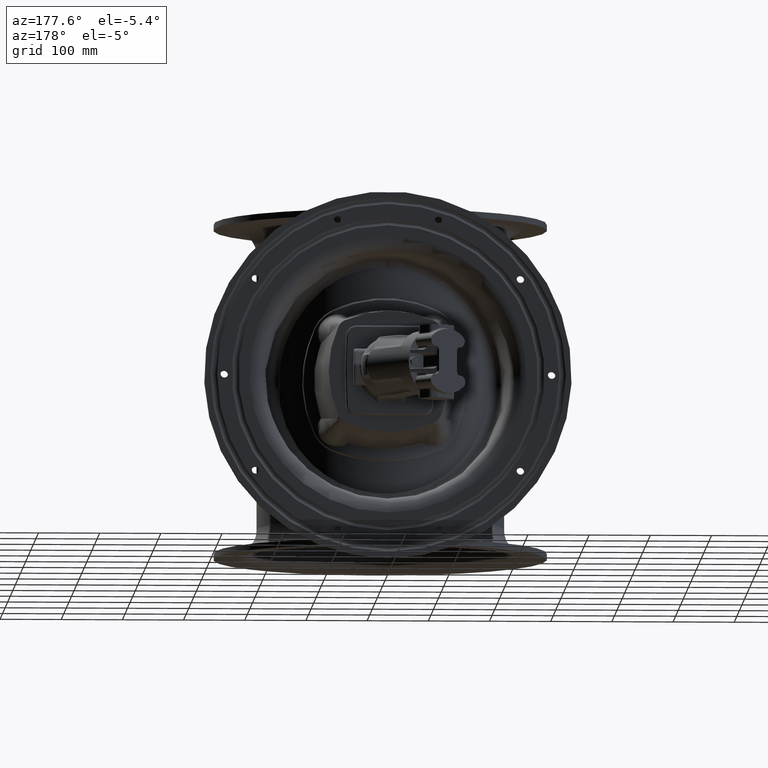
[diagram: clean part render]
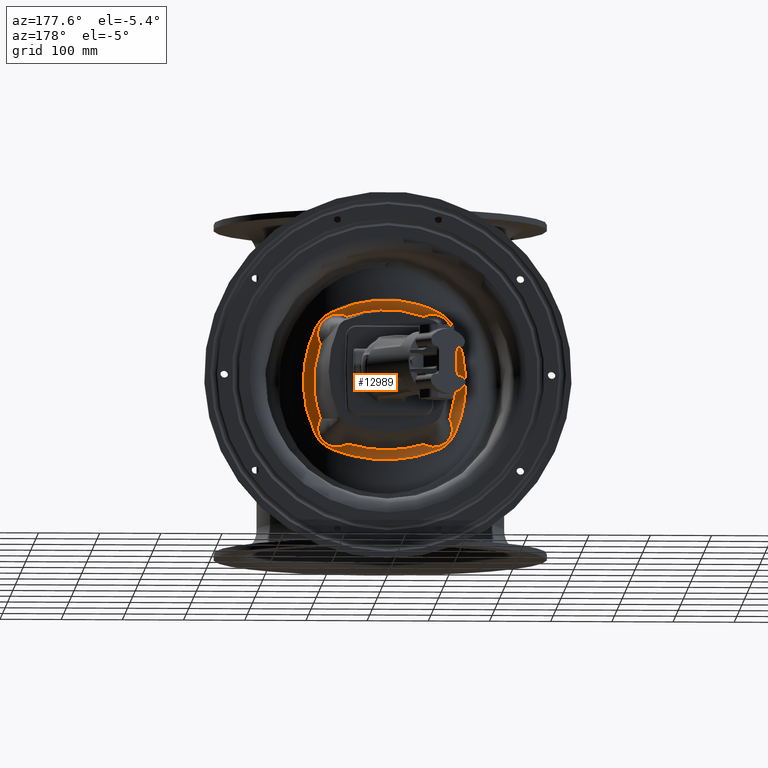
[diagram: same view with one face highlighted and labeled with its STEP entity id]
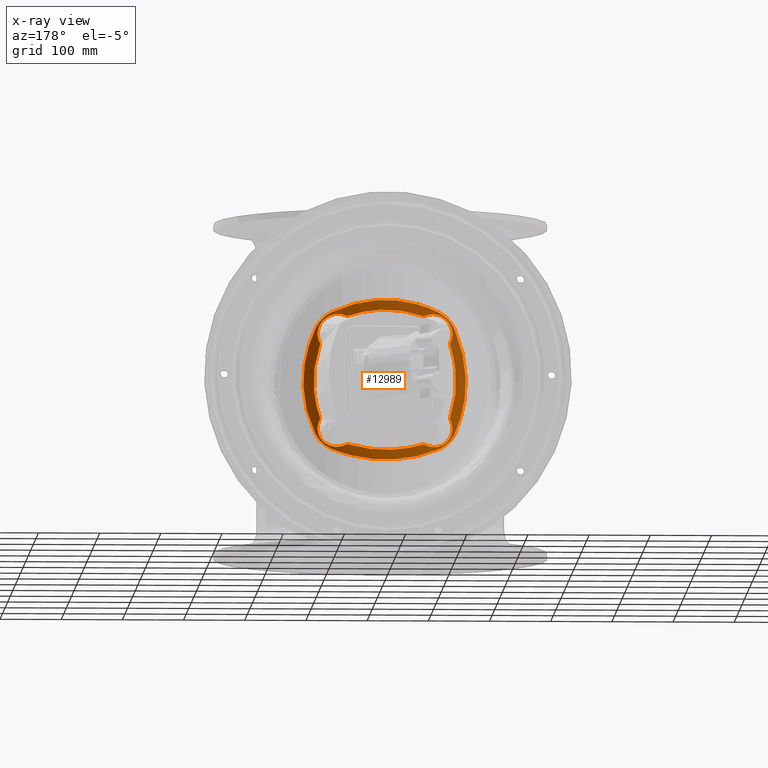
[diagram: x-ray of the same camera — body ghosted, the highlighted face saturated]
A machine part, auxiliary view. The second image highlights one B-rep face of the part: STEP entity #12989.
The next image is the same camera in x-ray: the body ghosted, the highlighted face saturated — about 9% of this face is hidden behind the body in this view.
In plain terms, the highlighted cylindrical surface (partial cylindrical patch) has radius 218.5 mm, axis along (0, -0, 1).
Its self-contained STEP definition (entity closure, byte-faithful):
#722=CYLINDRICAL_SURFACE('',#14090,218.5);
#786=FACE_BOUND('',#3130,.T.);
#1450=B_SPLINE_CURVE_WITH_KNOTS('',3,(#46379,#46380,#46381,#46382),
 .UNSPECIFIED.,.F.,.F.,(4,4),(-0.1566549581717,-8.0093701911654E-16),
 .UNSPECIFIED.);
#1451=B_SPLINE_CURVE_WITH_KNOTS('',3,(#46407,#46408,#46409,#46410,#46411),
 .UNSPECIFIED.,.F.,.F.,(4,1,4),(-0.158430321313645,-0.0905316121792253,
1.23113629245577E-15),.UNSPECIFIED.);
#1457=B_SPLINE_CURVE_WITH_KNOTS('',3,(#46723,#46724,#46725,#46726,#46727,
#46728,#46729,#46730,#46731,#46732),.UNSPECIFIED.,.F.,.F.,(4,1,1,1,1,1,
1,4),(9.72064362525098,10.6409701929338,11.5612967606167,15.2426030313481,
17.0832561667137,18.9239093020794,20.7645624374451,22.6052155728108),
 .UNSPECIFIED.);
#1458=B_SPLINE_CURVE_WITH_KNOTS('',3,(#46756,#46757,#46758,#46759,#46760,
#46761,#46762,#46763,#46764,#46765,#46766),.UNSPECIFIED.,.F.,.F.,(4,1,1,
1,1,1,1,1,4),(-18.3472174276045,-15.7261863665181,-14.415670835975,-13.1051553054318,
-10.4841242443454,-7.86309318325907,-5.24206212217271,-2.62103106108636,
0.),.UNSPECIFIED.);
#1459=B_SPLINE_CURVE_WITH_KNOTS('',3,(#46768,#46769,#46770,#46771,#46772,
#46773,#46774,#46775,#46776,#46777,#46778,#46779,#46780,#46781,#46782,#46783,
#46784,#46785,#46786,#46787,#46788,#46789,#46790,#46791,#46792,#46793,#46794,
#46795,#46796,#46797,#46798,#46799,#46800,#46801,#46802,#46803),
 .UNSPECIFIED.,.F.,.F.,(4,2,2,2,2,2,2,2,2,2,2,2,2,2,2,2,2,4),(0.,0.313338962880444,
0.627831069228086,0.785734745888215,1.103344320034,1.26315467786212,1.50358712690408,
1.58393594588746,1.7449900545711,1.82570130926622,1.98754206155304,2.06854044917885,
2.23074352654346,2.31195524119787,2.55555119305043,2.71780441462933,3.20447675905543,
3.85533213775047),.UNSPECIFIED.);
#1460=B_SPLINE_CURVE_WITH_KNOTS('',3,(#46805,#46806,#46807,#46808,#46809,
#46810,#46811,#46812,#46813,#46814),.UNSPECIFIED.,.F.,.F.,(4,1,1,1,1,1,
1,4),(-18.1158131645623,-15.5278398553391,-12.9398665461159,-10.3518932368927,
-7.76391992766956,-5.17594661844637,-2.58797330922319,0.),.UNSPECIFIED.);
#1461=B_SPLINE_CURVE_WITH_KNOTS('',3,(#46816,#46817,#46818,#46819,#46820,
#46821,#46822,#46823,#46824,#46825,#46826,#46827,#46828,#46829,#46830,#46831,
#46832,#46833,#46834,#46835,#46836,#46837,#46838,#46839,#46840,#46841,#46842,
#46843,#46844,#46845,#46846,#46847,#46848,#46849,#46850,#46851),
 .UNSPECIFIED.,.F.,.F.,(4,2,2,2,2,2,2,2,2,2,2,2,2,2,2,2,2,4),(0.,0.325645222580926,
0.649827350207644,0.811524680246878,1.13444218756611,1.29578255426145,1.53781048990584,
1.61851693522141,1.78001781312159,1.86081456996459,2.02253853885232,2.10332921667944,
2.26467975519684,2.34504926709908,2.58493154959498,2.7439482335516,3.21768948880086,
3.84481511434516),.UNSPECIFIED.);
#1462=B_SPLINE_CURVE_WITH_KNOTS('',3,(#46853,#46854,#46855,#46856,#46857,
#46858,#46859,#46860,#46861,#46862,#46863),.UNSPECIFIED.,.F.,.F.,(4,1,1,
1,1,1,1,1,4),(-18.3472174276045,-15.7261863665181,-14.415670835975,-13.1051553054318,
-10.4841242443454,-7.86309318325907,-5.24206212217271,-2.62103106108636,
-4.56142840676578E-15),.UNSPECIFIED.);
#1463=B_SPLINE_CURVE_WITH_KNOTS('',3,(#46865,#46866,#46867,#46868,#46869,
#46870,#46871,#46872,#46873,#46874,#46875,#46876,#46877,#46878,#46879,#46880,
#46881,#46882,#46883,#46884,#46885,#46886,#46887,#46888,#46889,#46890,#46891,
#46892,#46893,#46894,#46895,#46896,#46897,#46898,#46899,#46900),
 .UNSPECIFIED.,.F.,.F.,(4,2,2,2,2,2,2,2,2,2,2,2,2,2,2,2,2,4),(0.,0.313181047381019,
0.627126247577834,0.784578230117367,1.1008669440528,1.25988358705548,1.49976587192473,
1.58013538535829,1.74148593109472,1.82227661434483,1.98400058441611,2.06479733701839,
2.22629820865227,2.30700465238583,2.54903258604403,2.71037299506959,3.19498842063407,
3.84481511738857),.UNSPECIFIED.);
#1464=B_SPLINE_CURVE_WITH_KNOTS('',3,(#46902,#46903,#46904,#46905,#46906,
#46907,#46908,#46909,#46910,#46911),.UNSPECIFIED.,.F.,.F.,(4,1,1,1,1,1,
1,4),(-18.1158131645623,-15.5278398553391,-12.9398665461159,-10.3518932368927,
-7.76391992766955,-5.17594661844637,-2.58797330922318,0.),.UNSPECIFIED.);
#1465=B_SPLINE_CURVE_WITH_KNOTS('',3,(#46912,#46913,#46914,#46915,#46916,
#46917,#46918,#46919,#46920,#46921,#46922,#46923,#46924,#46925,#46926,#46927,
#46928,#46929,#46930,#46931,#46932,#46933,#46934,#46935,#46936,#46937,#46938,
#46939,#46940,#46941,#46942,#46943,#46944,#46945,#46946,#46947),
 .UNSPECIFIED.,.F.,.F.,(4,2,2,2,2,2,2,2,2,2,2,2,2,2,2,2,2,4),(1.07088497824771E-14,
0.325905275486002,0.650856037812379,0.813121719656133,1.1375277994646,1.29978098169107,
1.54337694099187,1.62458865648814,1.78679173912611,1.86779013072979,2.0296308817571,
2.11034213123071,2.27139623215231,2.35174504900884,2.59217749477283,2.75198789278476,
3.22750169803704,3.85533214195846),.UNSPECIFIED.);
#1466=B_SPLINE_CURVE_WITH_KNOTS('',3,(#46949,#46950,#46951,#46952),
 .UNSPECIFIED.,.F.,.F.,(4,4),(-0.156654958171696,-4.14132169534547E-16),
 .UNSPECIFIED.);
#1467=B_SPLINE_CURVE_WITH_KNOTS('',3,(#46954,#46955,#46956,#46957,#46958,
#46959,#46960,#46961,#46962,#46963,#46964,#46965,#46966,#46967,#46968,#46969,
#46970),.UNSPECIFIED.,.F.,.F.,(4,1,1,1,1,1,1,1,1,1,1,1,1,1,4),(16.4724657558533,
17.07834818434,17.6842306128267,18.4415836484351,18.8959954698001,20.1077603267736,
20.7136427552603,21.9254076122337,22.228348826477,22.4555547371595,22.5312900407204,
23.7430548976938,24.3489373261805,24.5004079333021,24.9548197546672),
 .UNSPECIFIED.);
#1468=B_SPLINE_CURVE_WITH_KNOTS('',3,(#46972,#46973,#46974,#46975,#46976),
 .UNSPECIFIED.,.F.,.F.,(4,1,4),(-0.158430321313518,-0.0678987091343641,
9.54083884702158E-16),.UNSPECIFIED.);
#1469=B_SPLINE_CURVE_WITH_KNOTS('',3,(#46978,#46979,#46980,#46981,#46982,
#46983,#46984,#46985,#46986),.UNSPECIFIED.,.F.,.F.,(4,1,1,1,1,1,4),(8.93978121183471,
10.7116276507684,14.2553205286357,16.0271669675694,17.7990134065031,19.5708598454368,
21.3427062843705),.UNSPECIFIED.);
#1470=B_SPLINE_CURVE_WITH_KNOTS('',3,(#46988,#46989,#46990,#46991,#46992),
 .UNSPECIFIED.,.F.,.F.,(4,1,4),(-0.158430321313516,-0.0678987091343639,
3.92959384243506E-16),.UNSPECIFIED.);
#1471=B_SPLINE_CURVE_WITH_KNOTS('',3,(#46994,#46995,#46996,#46997,#46998,
#46999,#47000,#47001,#47002,#47003,#47004,#47005,#47006,#47007,#47008),
 .UNSPECIFIED.,.F.,.F.,(4,1,1,1,1,1,1,1,1,1,1,1,4),(16.2653519674738,16.8710447299895,
17.4767374925052,18.0824302550208,18.6881230175365,19.2938157800522,21.1108940675992,
21.8680100207438,22.3222795926306,22.6251259738884,23.5336651176619,23.8365114989198,
24.7450506426933),.UNSPECIFIED.);
#1472=B_SPLINE_CURVE_WITH_KNOTS('',3,(#47010,#47011,#47012,#47013),
 .UNSPECIFIED.,.F.,.F.,(4,4),(-0.156654958171698,6.56410601181927E-16),
 .UNSPECIFIED.);
#1473=B_SPLINE_CURVE_WITH_KNOTS('',3,(#47015,#47016,#47017,#47018,#47019,
#47020,#47021,#47022,#47023,#47024),.UNSPECIFIED.,.F.,.F.,(4,1,1,1,1,1,
1,4),(9.72064362525099,10.6409701929338,11.5612967606167,15.2426030313481,
17.0832561667137,18.9239093020794,20.7645624374451,22.6052155728108),
 .UNSPECIFIED.);
#1474=B_SPLINE_CURVE_WITH_KNOTS('',3,(#47026,#47027,#47028,#47029),
 .UNSPECIFIED.,.F.,.F.,(4,4),(-0.156654958171696,-1.96524688343491E-15),
 .UNSPECIFIED.);
#1475=B_SPLINE_CURVE_WITH_KNOTS('',3,(#47031,#47032,#47033,#47034,#47035,
#47036,#47037,#47038,#47039,#47040,#47041,#47042,#47043,#47044,#47045,#47046,
#47047),.UNSPECIFIED.,.F.,.F.,(4,1,1,1,1,1,1,1,1,1,1,1,1,1,4),(16.4744251555581,
17.08030718003,17.686189204502,18.443541735092,18.897953253446,20.10971730239,
20.7155993268619,21.9273633758059,22.2303043880419,22.3060396411009,22.5332454002779,
23.7450094492219,24.3508914736938,24.5023619798118,24.9567734981658),
 .UNSPECIFIED.);
#1476=B_SPLINE_CURVE_WITH_KNOTS('',3,(#47049,#47050,#47051,#47052,#47053),
 .UNSPECIFIED.,.F.,.F.,(4,1,4),(-0.158430321313644,-0.0905316121792253,
-6.15436200314307E-17),.UNSPECIFIED.);
#1477=B_SPLINE_CURVE_WITH_KNOTS('',3,(#47054,#47055,#47056,#47057,#47058,
#47059,#47060,#47061,#47062,#47063),.UNSPECIFIED.,.F.,.F.,(4,1,1,1,1,1,
1,4),(9.07444144829569,10.8462878872294,12.6181343261631,14.3899807650967,
16.1618272040304,17.9336736429641,19.7055200818978,21.4773665208314),
 .UNSPECIFIED.);
#1478=B_SPLINE_CURVE_WITH_KNOTS('',3,(#47064,#47065,#47066,#47067,#47068,
#47069,#47070,#47071,#47072,#47073,#47074,#47075,#47076,#47077,#47078),
 .UNSPECIFIED.,.F.,.F.,(4,1,1,1,1,1,1,1,1,1,1,1,4),(16.2673054806293,16.872998116822,
17.4786907530147,18.0843833892075,18.6900760254002,19.2957686615929,21.112846570171,
21.8699623654119,22.3242318425564,22.7785013197009,23.5356171149418,23.8384634330382,
24.7470023873272),.UNSPECIFIED.);
#2285=FACE_OUTER_BOUND('',#3129,.T.);
#3129=EDGE_LOOP('',(#10697,#10698,#10699,#10700,#10701,#10702,#10703,#10704));
#3130=EDGE_LOOP('',(#10705,#10706,#10707,#10708,#10709,#10710,#10711,#10712,
#10713,#10714,#10715,#10716,#10717,#10718,#10719,#10720));
#5662=VERTEX_POINT('',#46370);
#5664=VERTEX_POINT('',#46377);
#5666=VERTEX_POINT('',#46404);
#5667=VERTEX_POINT('',#46406);
#5670=VERTEX_POINT('',#46721);
#5671=VERTEX_POINT('',#46754);
#5672=VERTEX_POINT('',#46755);
#5673=VERTEX_POINT('',#46767);
#5674=VERTEX_POINT('',#46804);
#5675=VERTEX_POINT('',#46815);
#5676=VERTEX_POINT('',#46852);
#5677=VERTEX_POINT('',#46864);
#5678=VERTEX_POINT('',#46901);
#5679=VERTEX_POINT('',#46948);
#5680=VERTEX_POINT('',#46953);
#5681=VERTEX_POINT('',#46971);
#5682=VERTEX_POINT('',#46977);
#5683=VERTEX_POINT('',#46987);
#5684=VERTEX_POINT('',#46993);
#5685=VERTEX_POINT('',#47009);
#5686=VERTEX_POINT('',#47014);
#5687=VERTEX_POINT('',#47025);
#5688=VERTEX_POINT('',#47030);
#5689=VERTEX_POINT('',#47048);
#7387=EDGE_CURVE('',#5664,#5662,#1450,.T.);
#7389=EDGE_CURVE('',#5666,#5667,#1451,.T.);
#7399=EDGE_CURVE('',#5670,#5664,#1457,.T.);
#7400=EDGE_CURVE('',#5671,#5672,#1458,.T.);
#7401=EDGE_CURVE('',#5673,#5671,#1459,.T.);
#7402=EDGE_CURVE('',#5674,#5673,#1460,.T.);
#7403=EDGE_CURVE('',#5675,#5674,#1461,.T.);
#7404=EDGE_CURVE('',#5676,#5675,#1462,.T.);
#7405=EDGE_CURVE('',#5677,#5676,#1463,.T.);
#7406=EDGE_CURVE('',#5678,#5677,#1464,.T.);
#7407=EDGE_CURVE('',#5672,#5678,#1465,.T.);
#7408=EDGE_CURVE('',#5679,#5670,#1466,.T.);
#7409=EDGE_CURVE('',#5680,#5679,#1467,.T.);
#7410=EDGE_CURVE('',#5681,#5680,#1468,.T.);
#7411=EDGE_CURVE('',#5682,#5681,#1469,.T.);
#7412=EDGE_CURVE('',#5683,#5682,#1470,.T.);
#7413=EDGE_CURVE('',#5684,#5683,#1471,.T.);
#7414=EDGE_CURVE('',#5685,#5684,#1472,.T.);
#7415=EDGE_CURVE('',#5686,#5685,#1473,.T.);
#7416=EDGE_CURVE('',#5687,#5686,#1474,.T.);
#7417=EDGE_CURVE('',#5688,#5687,#1475,.T.);
#7418=EDGE_CURVE('',#5689,#5688,#1476,.T.);
#7419=EDGE_CURVE('',#5667,#5689,#1477,.T.);
#7420=EDGE_CURVE('',#5662,#5666,#1478,.T.);
#10697=ORIENTED_EDGE('',*,*,#7400,.F.);
#10698=ORIENTED_EDGE('',*,*,#7401,.F.);
#10699=ORIENTED_EDGE('',*,*,#7402,.F.);
#10700=ORIENTED_EDGE('',*,*,#7403,.F.);
#10701=ORIENTED_EDGE('',*,*,#7404,.F.);
#10702=ORIENTED_EDGE('',*,*,#7405,.F.);
#10703=ORIENTED_EDGE('',*,*,#7406,.F.);
#10704=ORIENTED_EDGE('',*,*,#7407,.F.);
#10705=ORIENTED_EDGE('',*,*,#7387,.F.);
#10706=ORIENTED_EDGE('',*,*,#7399,.F.);
#10707=ORIENTED_EDGE('',*,*,#7408,.F.);
#10708=ORIENTED_EDGE('',*,*,#7409,.F.);
#10709=ORIENTED_EDGE('',*,*,#7410,.F.);
#10710=ORIENTED_EDGE('',*,*,#7411,.F.);
#10711=ORIENTED_EDGE('',*,*,#7412,.F.);
#10712=ORIENTED_EDGE('',*,*,#7413,.F.);
#10713=ORIENTED_EDGE('',*,*,#7414,.F.);
#10714=ORIENTED_EDGE('',*,*,#7415,.F.);
#10715=ORIENTED_EDGE('',*,*,#7416,.F.);
#10716=ORIENTED_EDGE('',*,*,#7417,.F.);
#10717=ORIENTED_EDGE('',*,*,#7418,.F.);
#10718=ORIENTED_EDGE('',*,*,#7419,.F.);
#10719=ORIENTED_EDGE('',*,*,#7389,.F.);
#10720=ORIENTED_EDGE('',*,*,#7420,.F.);
#12989=ADVANCED_FACE('',(#2285,#786),#722,.T.);
#14090=AXIS2_PLACEMENT_3D('',#46753,#16445,#16446);
#16445=DIRECTION('center_axis',(1.66533453693773E-16,-4.8305084843109E-16,
1.));
#16446=DIRECTION('ref_axis',(-1.,5.02815290480203E-16,1.66533453693774E-16));
#46370=CARTESIAN_POINT('',(67.3953376655915,108.775883055372,105.222557000298));
#46377=CARTESIAN_POINT('',(65.94800554383,109.210006990103,105.086151067995));
#46379=CARTESIAN_POINT('Ctrl Pts',(65.94800554383,109.210006990103,105.086151067995));
#46380=CARTESIAN_POINT('Ctrl Pts',(66.4201040670008,109.070179557167,104.932711246276));
#46381=CARTESIAN_POINT('Ctrl Pts',(66.9557256982009,108.90940220942,104.98643619193));
#46382=CARTESIAN_POINT('Ctrl Pts',(67.3953376655915,108.775883055372,105.222557000298));
#46404=CARTESIAN_POINT('',(110.084779868988,90.6676953241571,62.3334979342253));
#46406=CARTESIAN_POINT('',(109.969382562427,90.7318187988507,60.8088923590658));
#46407=CARTESIAN_POINT('Ctrl Pts',(110.084779868988,90.667695324157,62.3334979342253));
#46408=CARTESIAN_POINT('Ctrl Pts',(109.979296032883,90.7263518375329,62.1430914301706));
#46409=CARTESIAN_POINT('Ctrl Pts',(109.80911786188,90.820723710757,61.6380405077748));
#46410=CARTESIAN_POINT('Ctrl Pts',(109.872683557868,90.7855138560104,61.0890606307606));
#46411=CARTESIAN_POINT('Ctrl Pts',(109.969382562427,90.7318187988507,60.8088923590658));
#46721=CARTESIAN_POINT('',(-58.1548519818797,109.210006990103,105.086151067995));
#46723=CARTESIAN_POINT('Ctrl Pts',(-58.1548519818797,109.210006990103,105.086151067995));
#46724=CARTESIAN_POINT('Ctrl Pts',(-55.3760572517268,110.033038020075,105.989305276412));
#46725=CARTESIAN_POINT('Ctrl Pts',(-49.7672034797093,111.572236254259,107.676575240901));
#46726=CARTESIAN_POINT('Ctrl Pts',(-32.5041634157577,115.590218479754,112.072500323683));
#46727=CARTESIAN_POINT('Ctrl Pts',(-11.2534962590815,118.277877653465,115.000075914142));
#46728=CARTESIAN_POINT('Ctrl Pts',(12.9849416108882,118.267278819013,114.989006308675));
#46729=CARTESIAN_POINT('Ctrl Pts',(31.1920291199521,116.752930317803,113.338575226992));
#46730=CARTESIAN_POINT('Ctrl Pts',(49.026433586474,113.741847945499,110.051777911848));
#46731=CARTESIAN_POINT('Ctrl Pts',(60.3904160835242,110.856069050046,106.892459484829));
#46732=CARTESIAN_POINT('Ctrl Pts',(65.94800554383,109.210006990103,105.086151067995));
#46753=CARTESIAN_POINT('Origin',(3.89657678097504,-100.293859772514,-3.22507180430981E-8));
#46754=CARTESIAN_POINT('',(-84.064652815031,99.7188200454385,-111.907491916442));
#46755=CARTESIAN_POINT('',(91.8578063769813,99.7188200454384,-111.907491916442));
#46756=CARTESIAN_POINT('Ctrl Pts',(-84.064652815031,99.7188200454385,-111.907491916442));
#46757=CARTESIAN_POINT('Ctrl Pts',(-76.5975589645037,103.002685634355,-115.314039439292));
#46758=CARTESIAN_POINT('Ctrl Pts',(-64.8403015673793,107.417012753066,-119.88006149377));
#46759=CARTESIAN_POINT('Ctrl Pts',(-48.3960615511409,111.987338956805,-124.596229831582));
#46760=CARTESIAN_POINT('Ctrl Pts',(-31.410524983108,115.643445792245,-128.363777529929));
#46761=CARTESIAN_POINT('Ctrl Pts',(-9.51313056322293,118.337525427584,-131.135136833688));
#46762=CARTESIAN_POINT('Ctrl Pts',(17.1919183102008,118.342271401838,-131.140083932874));
#46763=CARTESIAN_POINT('Ctrl Pts',(43.4635806525125,115.127839722858,-127.833316815002));
#46764=CARTESIAN_POINT('Ctrl Pts',(68.6676165067136,108.908560264867,-121.422843135002));
#46765=CARTESIAN_POINT('Ctrl Pts',(84.390712526454,103.002685634355,-115.314039439292));
#46766=CARTESIAN_POINT('Ctrl Pts',(91.8578063769813,99.7188200454384,-111.907491916442));
#46767=CARTESIAN_POINT('',(-109.568792020398,86.4355168203736,-86.7535239587462));
#46768=CARTESIAN_POINT('Ctrl Pts',(-109.568792020398,86.4355168203736,-86.7535239587462));
#46769=CARTESIAN_POINT('Ctrl Pts',(-109.137996274051,86.6972881556031,-87.6720685214567));
#46770=CARTESIAN_POINT('Ctrl Pts',(-108.680612100326,86.9731755506148,-88.5763180320649));
#46771=CARTESIAN_POINT('Ctrl Pts',(-107.71375291928,87.5510303617752,-90.3556044414028));
#46772=CARTESIAN_POINT('Ctrl Pts',(-107.204095628277,87.8530853726808,-91.2305149568838));
#46773=CARTESIAN_POINT('Ctrl Pts',(-106.403018563165,88.3230686554845,-92.5173255034503));
#46774=CARTESIAN_POINT('Ctrl Pts',(-106.129291489666,88.4828939758854,-92.9428639365705));
#46775=CARTESIAN_POINT('Ctrl Pts',(-105.287754858973,88.9717061917662,-94.2098364022499));
#46776=CARTESIAN_POINT('Ctrl Pts',(-104.7024873456,89.308302723693,-95.0366125749681));
#46777=CARTESIAN_POINT('Ctrl Pts',(-103.791037342629,89.8264991746315,-96.2475858518049));
#46778=CARTESIAN_POINT('Ctrl Pts',(-103.480650385542,90.0019956618075,-96.6475542813853));
#46779=CARTESIAN_POINT('Ctrl Pts',(-102.6888182849,90.4470676815599,-97.6375837913471));
#46780=CARTESIAN_POINT('Ctrl Pts',(-102.200477733983,90.7192072997132,-98.2211944453832));
#46781=CARTESIAN_POINT('Ctrl Pts',(-101.532852674005,91.0877535725839,-98.9843160089608));
#46782=CARTESIAN_POINT('Ctrl Pts',(-101.364283240358,91.1805221526788,-99.1741590419489));
#46783=CARTESIAN_POINT('Ctrl Pts',(-100.853861616003,91.4605314831939,-99.7405576006975));
#46784=CARTESIAN_POINT('Ctrl Pts',(-100.508028994798,91.6490682168159,-100.113120916613));
#46785=CARTESIAN_POINT('Ctrl Pts',(-99.9812545459909,91.9343540749029,-100.664175300201));
#46786=CARTESIAN_POINT('Ctrl Pts',(-99.8041188301025,92.0299733978691,-100.846765045318));
#46787=CARTESIAN_POINT('Ctrl Pts',(-99.2680330049826,92.3183888776856,-101.391279119529));
#46788=CARTESIAN_POINT('Ctrl Pts',(-98.9053135890888,92.5122462332126,-101.748993588134));
#46789=CARTESIAN_POINT('Ctrl Pts',(-98.3538717330636,92.8049211550311,-102.277094201666));
#46790=CARTESIAN_POINT('Ctrl Pts',(-98.1687372061958,92.9028433273633,-102.451794521347));
#46791=CARTESIAN_POINT('Ctrl Pts',(-97.6093486113128,93.1976776310839,-102.971952889796));
#46792=CARTESIAN_POINT('Ctrl Pts',(-97.2315727327403,93.3954094377314,-103.313013092689));
#46793=CARTESIAN_POINT('Ctrl Pts',(-96.6579717959114,93.6934577328455,-103.815828437269));
#46794=CARTESIAN_POINT('Ctrl Pts',(-96.4654815786499,93.7931175180354,-103.982081216793));
#46795=CARTESIAN_POINT('Ctrl Pts',(-95.6912827380093,94.1924770879355,-104.640926462458));
#46796=CARTESIAN_POINT('Ctrl Pts',(-95.0995321968368,94.4944242575558,-105.122522740981));
#46797=CARTESIAN_POINT('Ctrl Pts',(-94.0960554967334,95.000523547726,-105.90322616972));
#46798=CARTESIAN_POINT('Ctrl Pts',(-93.6902080271827,95.2036573994416,-106.209560745685));
#46799=CARTESIAN_POINT('Ctrl Pts',(-92.0491503823109,96.0185383766287,-107.41103710209));
#46800=CARTESIAN_POINT('Ctrl Pts',(-90.7781124455521,96.6351570382729,-108.258706670955));
#46801=CARTESIAN_POINT('Ctrl Pts',(-87.7265941425096,98.0774575264386,-110.106574104464));
#46802=CARTESIAN_POINT('Ctrl Pts',(-85.9188842539454,98.9033693576574,-111.061576806566));
#46803=CARTESIAN_POINT('Ctrl Pts',(-84.064652815031,99.7188200454385,-111.907491916442));
#46804=CARTESIAN_POINT('',(-109.568792020398,86.4355168203735,86.7535238942451));
#46805=CARTESIAN_POINT('Ctrl Pts',(-109.568792020398,86.4355168203735,86.753523894245));
#46806=CARTESIAN_POINT('Ctrl Pts',(-113.126880944363,84.2734581269202,79.1669512261895));
#46807=CARTESIAN_POINT('Ctrl Pts',(-119.342533264153,80.2184472928578,63.5053115483124));
#46808=CARTESIAN_POINT('Ctrl Pts',(-125.777475394888,75.5991615155771,38.6711881142813));
#46809=CARTESIAN_POINT('Ctrl Pts',(-129.060203029711,73.099357823602,13.0253072801163));
#46810=CARTESIAN_POINT('Ctrl Pts',(-129.066289813177,73.0940661282161,-12.9597723021451));
#46811=CARTESIAN_POINT('Ctrl Pts',(-125.7866475809,75.59235820107,-38.6107070789086));
#46812=CARTESIAN_POINT('Ctrl Pts',(-119.373841312242,80.1971505111735,-63.4161680207077));
#46813=CARTESIAN_POINT('Ctrl Pts',(-113.126880944363,84.2734581269203,-79.1669512906906));
#46814=CARTESIAN_POINT('Ctrl Pts',(-109.568792020398,86.4355168203736,-86.7535239587463));
#46815=CARTESIAN_POINT('',(-84.0646528150309,99.7188200454384,111.907491851941));
#46816=CARTESIAN_POINT('Ctrl Pts',(-84.0646528150309,99.7188200454384,111.907491851941));
#46817=CARTESIAN_POINT('Ctrl Pts',(-84.992388268108,99.3108221561709,111.484251569603));
#46818=CARTESIAN_POINT('Ctrl Pts',(-85.9092387171701,98.899897546624,111.033400522073));
#46819=CARTESIAN_POINT('Ctrl Pts',(-87.7130868321409,98.0767481717837,110.079926012898));
#46820=CARTESIAN_POINT('Ctrl Pts',(-88.6001960754412,97.6645409644782,109.577546188243));
#46821=CARTESIAN_POINT('Ctrl Pts',(-89.9077038206896,97.0465530960776,108.785783097527));
#46822=CARTESIAN_POINT('Ctrl Pts',(-90.3391693924857,96.8408637083784,108.515852368791));
#46823=CARTESIAN_POINT('Ctrl Pts',(-91.6206093357719,96.2248798151496,107.687917346075));
#46824=CARTESIAN_POINT('Ctrl Pts',(-92.4589257086677,95.8150579259799,107.111019608299));
#46825=CARTESIAN_POINT('Ctrl Pts',(-93.6900730371519,95.2037245596023,106.209659343026));
#46826=CARTESIAN_POINT('Ctrl Pts',(-94.0959256823524,95.0005884406345,105.903325548858));
#46827=CARTESIAN_POINT('Ctrl Pts',(-95.0992441545825,94.4945692930563,105.122745943434));
#46828=CARTESIAN_POINT('Ctrl Pts',(-95.6910287252787,94.1926078975581,104.641141831836));
#46829=CARTESIAN_POINT('Ctrl Pts',(-96.4656073628611,93.793052432758,103.981973378104));
#46830=CARTESIAN_POINT('Ctrl Pts',(-96.6580947219028,93.6933936647636,103.815719890319));
#46831=CARTESIAN_POINT('Ctrl Pts',(-97.232054906446,93.395158698492,103.312589605644));
#46832=CARTESIAN_POINT('Ctrl Pts',(-97.6098124966612,93.1974329636427,102.971520779348));
#46833=CARTESIAN_POINT('Ctrl Pts',(-98.1688519171141,92.9027827209696,102.451687124001));
#46834=CARTESIAN_POINT('Ctrl Pts',(-98.3539841573329,92.8048613495633,102.276985862715));
#46835=CARTESIAN_POINT('Ctrl Pts',(-98.9057463624104,92.5120163952789,101.748578403507));
#46836=CARTESIAN_POINT('Ctrl Pts',(-99.2684474460247,92.3181658089319,101.390857730184));
#46837=CARTESIAN_POINT('Ctrl Pts',(-99.804222133503,92.0299177210277,100.846659511439));
#46838=CARTESIAN_POINT('Ctrl Pts',(-99.9813568094961,91.9342986763858,100.664068491094));
#46839=CARTESIAN_POINT('Ctrl Pts',(-100.508136686806,91.6490095959679,100.113005771312));
#46840=CARTESIAN_POINT('Ctrl Pts',(-100.85352034926,91.4607183671918,99.7409333914325));
#46841=CARTESIAN_POINT('Ctrl Pts',(-101.364164306517,91.1805874755929,99.1742917816742));
#46842=CARTESIAN_POINT('Ctrl Pts',(-101.53273091151,91.087820713209,98.9844545894364));
#46843=CARTESIAN_POINT('Ctrl Pts',(-102.19952732113,90.7197321012434,98.2222818291248));
#46844=CARTESIAN_POINT('Ctrl Pts',(-102.687963407981,90.4475481279297,97.6386509392369));
#46845=CARTESIAN_POINT('Ctrl Pts',(-103.480348345303,90.0021657265973,96.6479352261507));
#46846=CARTESIAN_POINT('Ctrl Pts',(-103.790980903974,89.8265313516671,96.2476605680771));
#46847=CARTESIAN_POINT('Ctrl Pts',(-105.005207076404,89.1361949854273,94.6344238131198));
#46848=CARTESIAN_POINT('Ctrl Pts',(-105.865445066351,88.6384595066227,93.380858818506));
#46849=CARTESIAN_POINT('Ctrl Pts',(-107.736898850416,87.5404934332773,90.3746778297474));
#46850=CARTESIAN_POINT('Ctrl Pts',(-108.706585005268,86.9594335106124,88.5919254392817));
#46851=CARTESIAN_POINT('Ctrl Pts',(-109.568792020398,86.4355168203736,86.7535238942451));
#46852=CARTESIAN_POINT('',(91.8578063769812,99.7188200454383,111.907491851941));
#46853=CARTESIAN_POINT('Ctrl Pts',(91.8578063769812,99.7188200454383,111.907491851941));
#46854=CARTESIAN_POINT('Ctrl Pts',(84.3907125264539,103.002685634355,115.314039374791));
#46855=CARTESIAN_POINT('Ctrl Pts',(72.6337445305218,107.417040431252,119.880086222797));
#46856=CARTESIAN_POINT('Ctrl Pts',(56.1888176207668,111.987311853276,124.596204782251));
#46857=CARTESIAN_POINT('Ctrl Pts',(39.2045195149843,115.643584575421,128.363900642668));
#46858=CARTESIAN_POINT('Ctrl Pts',(17.3060314505517,118.336478935511,131.134107534964));
#46859=CARTESIAN_POINT('Ctrl Pts',(-9.40051240320616,118.343025874316,131.140815690077));
#46860=CARTESIAN_POINT('Ctrl Pts',(-35.6724633035432,115.12652927054,127.832010308781));
#46861=CARTESIAN_POINT('Ctrl Pts',(-60.87085752459,108.909903384265,121.424197225324));
#46862=CARTESIAN_POINT('Ctrl Pts',(-76.5975589645036,103.002685634355,115.314039374791));
#46863=CARTESIAN_POINT('Ctrl Pts',(-84.0646528150309,99.7188200454384,111.907491851941));
#46864=CARTESIAN_POINT('',(117.361945582348,86.4355168203734,86.7535238942449));
#46865=CARTESIAN_POINT('Ctrl Pts',(117.361945582348,86.4355168203735,86.7535238942452));
#46866=CARTESIAN_POINT('Ctrl Pts',(116.93136694697,86.6971562289798,87.6716055320055));
#46867=CARTESIAN_POINT('Ctrl Pts',(116.474036733046,86.9730135014903,88.5758184568911));
#46868=CARTESIAN_POINT('Ctrl Pts',(115.507231833637,87.5508358277073,90.355004930266));
#46869=CARTESIAN_POINT('Ctrl Pts',(114.997634346213,87.8528592783415,91.2298950417141));
#46870=CARTESIAN_POINT('Ctrl Pts',(114.196277293305,88.3230068808311,92.5171556541218));
#46871=CARTESIAN_POINT('Ctrl Pts',(113.922558485064,88.4828280228669,92.9426923301341));
#46872=CARTESIAN_POINT('Ctrl Pts',(113.081405308816,88.9714174015375,94.2090869307858));
#46873=CARTESIAN_POINT('Ctrl Pts',(112.496213024241,89.3079771529637,95.0358498370676));
#46874=CARTESIAN_POINT('Ctrl Pts',(111.584135358454,89.8265308260403,96.2476603497663));
#46875=CARTESIAN_POINT('Ctrl Pts',(111.273501383782,90.0021658300811,96.6479341342774));
#46876=CARTESIAN_POINT('Ctrl Pts',(110.481116941702,90.4475480519683,97.6386502763854));
#46877=CARTESIAN_POINT('Ctrl Pts',(109.992680688524,90.7197321521836,98.2222814068501));
#46878=CARTESIAN_POINT('Ctrl Pts',(109.325884315649,91.0878207701551,98.9844543230632));
#46879=CARTESIAN_POINT('Ctrl Pts',(109.157317701267,91.1805875387862,99.1742915244171));
#46880=CARTESIAN_POINT('Ctrl Pts',(108.646673742421,91.4607184436596,99.7409332062841));
#46881=CARTESIAN_POINT('Ctrl Pts',(108.30129009132,91.6490096875952,100.113005685575));
#46882=CARTESIAN_POINT('Ctrl Pts',(107.77451020497,91.9342987840409,100.664068466023));
#46883=CARTESIAN_POINT('Ctrl Pts',(107.597375520993,92.0299178355535,100.846659504904));
#46884=CARTESIAN_POINT('Ctrl Pts',(107.061600835671,92.3181659337533,101.390857766179));
#46885=CARTESIAN_POINT('Ctrl Pts',(106.698899780505,92.5120165281746,101.748578498088));
#46886=CARTESIAN_POINT('Ctrl Pts',(106.147137599788,92.8048614823918,102.276985973938));
#46887=CARTESIAN_POINT('Ctrl Pts',(105.962005373718,92.9027828494379,102.451687230526));
#46888=CARTESIAN_POINT('Ctrl Pts',(105.402965998061,93.1974330835168,102.971520885311));
#46889=CARTESIAN_POINT('Ctrl Pts',(105.025208463652,93.3951588196116,103.312589745225));
#46890=CARTESIAN_POINT('Ctrl Pts',(104.451248325069,93.6933937822955,103.81572003676));
#46891=CARTESIAN_POINT('Ctrl Pts',(104.25876097163,93.7930525471012,103.981973518759));
#46892=CARTESIAN_POINT('Ctrl Pts',(103.48418241237,94.1926080285938,104.641142031569));
#46893=CARTESIAN_POINT('Ctrl Pts',(102.892397921838,94.4945693825281,105.122746114248));
#46894=CARTESIAN_POINT('Ctrl Pts',(101.889079624136,95.0005887678059,105.90332617125));
#46895=CARTESIAN_POINT('Ctrl Pts',(101.483226332547,95.2037244350231,106.209658954334));
#46896=CARTESIAN_POINT('Ctrl Pts',(99.8409916083057,96.0191902618314,107.411997577378));
#46897=CARTESIAN_POINT('Ctrl Pts',(98.5698321347825,96.6358347197834,108.259574785385));
#46898=CARTESIAN_POINT('Ctrl Pts',(95.5170317311208,98.0787416358504,110.108218157217));
#46899=CARTESIAN_POINT('Ctrl Pts',(93.7091071888202,98.9046581837521,111.062913717414));
#46900=CARTESIAN_POINT('Ctrl Pts',(91.8578063769812,99.7188200454383,111.907491851941));
#46901=CARTESIAN_POINT('',(117.361945582348,86.4355168203735,-86.7535239587463));
#46902=CARTESIAN_POINT('Ctrl Pts',(117.361945582348,86.4355168203735,-86.7535239587462));
#46903=CARTESIAN_POINT('Ctrl Pts',(120.920034506313,84.2734581269202,-79.1669512906906));
#46904=CARTESIAN_POINT('Ctrl Pts',(127.166815812522,80.1975123794852,-63.4174170071451));
#46905=CARTESIAN_POINT('Ctrl Pts',(133.580318262123,75.5914383634248,-38.607512613297));
#46906=CARTESIAN_POINT('Ctrl Pts',(136.859061350386,73.0952386121086,-12.9614728235758));
#46907=CARTESIAN_POINT('Ctrl Pts',(136.85324783254,73.0985068110243,13.0302521994066));
#46908=CARTESIAN_POINT('Ctrl Pts',(133.570841308273,75.5995142753105,38.6671692728364));
#46909=CARTESIAN_POINT('Ctrl Pts',(127.135657264908,80.2182473664771,63.5067246889503));
#46910=CARTESIAN_POINT('Ctrl Pts',(120.920034506313,84.2734581269201,79.1669512261894));
#46911=CARTESIAN_POINT('Ctrl Pts',(117.361945582348,86.4355168203734,86.7535238942449));
#46912=CARTESIAN_POINT('Ctrl Pts',(91.8578063769812,99.7188200454384,-111.907491916442));
#46913=CARTESIAN_POINT('Ctrl Pts',(92.786282698597,99.3104963382892,-111.483913643993));
#46914=CARTESIAN_POINT('Ctrl Pts',(93.7031092988714,98.8995703569714,-111.033021720818));
#46915=CARTESIAN_POINT('Ctrl Pts',(95.506938650292,98.0764295363326,-110.079557140963));
#46916=CARTESIAN_POINT('Ctrl Pts',(96.3940173521778,97.6642253646418,-109.577142153866));
#46917=CARTESIAN_POINT('Ctrl Pts',(97.7010190019187,97.0464767604116,-108.785685636138));
#46918=CARTESIAN_POINT('Ctrl Pts',(98.1324802523129,96.8407881469854,-108.515751143853));
#46919=CARTESIAN_POINT('Ctrl Pts',(99.4143760635805,96.22458507441,-107.687521581824));
#46920=CARTESIAN_POINT('Ctrl Pts',(100.252654277606,95.8147724187755,-107.110599115162));
#46921=CARTESIAN_POINT('Ctrl Pts',(101.48336251156,95.2036571635162,-106.209560505664));
#46922=CARTESIAN_POINT('Ctrl Pts',(101.88920910216,95.0005230226679,-105.903225144205));
#46923=CARTESIAN_POINT('Ctrl Pts',(102.892685977467,94.4944239549106,-105.122522159142));
#46924=CARTESIAN_POINT('Ctrl Pts',(103.484436504167,94.1924767952814,-104.640925931982));
#46925=CARTESIAN_POINT('Ctrl Pts',(104.258635432982,93.7931172350964,-103.982080733861));
#46926=CARTESIAN_POINT('Ctrl Pts',(104.451125654921,93.6934574472557,-103.81582794897));
#46927=CARTESIAN_POINT('Ctrl Pts',(105.024726637318,93.3954091480058,-103.313012608189));
#46928=CARTESIAN_POINT('Ctrl Pts',(105.402502576894,93.1976773387444,-102.97195242644));
#46929=CARTESIAN_POINT('Ctrl Pts',(105.961891222742,92.9028430226118,-102.451794046778));
#46930=CARTESIAN_POINT('Ctrl Pts',(106.147025766023,92.8049208445982,-102.277093718894));
#46931=CARTESIAN_POINT('Ctrl Pts',(106.698467660086,92.5122459149715,-101.748993103297));
#46932=CARTESIAN_POINT('Ctrl Pts',(107.06118713513,92.3183885505003,-101.391278650243));
#46933=CARTESIAN_POINT('Ctrl Pts',(107.597272982445,92.0299730700586,-100.846764590127));
#46934=CARTESIAN_POINT('Ctrl Pts',(107.774408696106,91.9343537508353,-100.664174855701));
#46935=CARTESIAN_POINT('Ctrl Pts',(108.301183160742,91.6490678954488,-100.113120498778));
#46936=CARTESIAN_POINT('Ctrl Pts',(108.647015856646,91.4605311429733,-99.7405571981954));
#46937=CARTESIAN_POINT('Ctrl Pts',(109.157437519482,91.1805218044191,-99.1741586580423));
#46938=CARTESIAN_POINT('Ctrl Pts',(109.326006951325,91.0877532262352,-98.9843156231485));
#46939=CARTESIAN_POINT('Ctrl Pts',(109.993632154496,90.7192069041847,-98.221194086723));
#46940=CARTESIAN_POINT('Ctrl Pts',(110.481972851367,90.4470672367649,-97.637583238029));
#46941=CARTESIAN_POINT('Ctrl Pts',(111.273805695206,90.0019949287421,-96.6475539489207));
#46942=CARTESIAN_POINT('Ctrl Pts',(111.584191386667,89.826498914142,-96.2475841204426));
#46943=CARTESIAN_POINT('Ctrl Pts',(112.797107552088,89.1369082661958,-94.6360941413674));
#46944=CARTESIAN_POINT('Ctrl Pts',(113.657578903162,88.639057922242,-93.3824961796699));
#46945=CARTESIAN_POINT('Ctrl Pts',(115.528623224209,87.5413328871672,-90.3769821402864));
#46946=CARTESIAN_POINT('Ctrl Pts',(116.498769543908,86.9600223338026,-88.5939916594955));
#46947=CARTESIAN_POINT('Ctrl Pts',(117.361945582348,86.4355168203735,-86.7535239587463));
#46948=CARTESIAN_POINT('',(-59.6021841036411,108.775883055372,105.222557000298));
#46949=CARTESIAN_POINT('Ctrl Pts',(-59.6021841036412,108.775883055372,105.222557000298));
#46950=CARTESIAN_POINT('Ctrl Pts',(-59.1625721362506,108.90940220942,104.98643619193));
#46951=CARTESIAN_POINT('Ctrl Pts',(-58.6269505050505,109.070179557167,104.932711246276));
#46952=CARTESIAN_POINT('Ctrl Pts',(-58.1548519818797,109.210006990103,105.086151067995));
#46953=CARTESIAN_POINT('',(-102.291626307038,90.6676953241572,62.3334979342253));
#46954=CARTESIAN_POINT('Ctrl Pts',(-102.291626307038,90.6676953241572,62.3334979342253));
#46955=CARTESIAN_POINT('Ctrl Pts',(-103.238038484937,90.1414228579488,64.0418453061342));
#46956=CARTESIAN_POINT('Ctrl Pts',(-104.829038347287,89.2385799150238,67.6652682957233));
#46957=CARTESIAN_POINT('Ctrl Pts',(-106.293403630434,88.3872274034542,74.105813778481));
#46958=CARTESIAN_POINT('Ctrl Pts',(-106.29446845826,88.3866393133252,80.2601379089748));
#46959=CARTESIAN_POINT('Ctrl Pts',(-104.746571067742,89.2867501488512,88.2156460261817));
#46960=CARTESIAN_POINT('Ctrl Pts',(-101.387306054825,91.1996669028357,94.9430781698892));
#46961=CARTESIAN_POINT('Ctrl Pts',(-95.0546419320694,94.5592632362137,101.987597217674));
#46962=CARTESIAN_POINT('Ctrl Pts',(-89.4655626009202,97.3039947148383,105.582459672365));
#46963=CARTESIAN_POINT('Ctrl Pts',(-84.501379413698,99.5313781817766,107.41373412618));
#46964=CARTESIAN_POINT('Ctrl Pts',(-82.7213829667831,100.30622566058,107.923991872091));
#46965=CARTESIAN_POINT('Ctrl Pts',(-78.2034572234615,102.236245231882,109.001189183208));
#46966=CARTESIAN_POINT('Ctrl Pts',(-72.332283637763,104.54684003718,109.299725990085));
#46967=CARTESIAN_POINT('Ctrl Pts',(-66.2601610201171,106.648276865561,107.953947808543));
#46968=CARTESIAN_POINT('Ctrl Pts',(-62.636883900464,107.837045361592,106.700786745404));
#46969=CARTESIAN_POINT('Ctrl Pts',(-60.8856318700136,108.386073694522,105.911912037406));
#46970=CARTESIAN_POINT('Ctrl Pts',(-59.6021841036411,108.775883055372,105.222557000298));
#46971=CARTESIAN_POINT('',(-102.176229000477,90.7318187988508,60.8088923590658));
#46972=CARTESIAN_POINT('Ctrl Pts',(-102.176229000477,90.7318187988508,60.8088923590658));
#46973=CARTESIAN_POINT('Ctrl Pts',(-102.079529995918,90.7855138560102,61.0890606307594));
#46974=CARTESIAN_POINT('Ctrl Pts',(-102.015964190187,90.820723770933,61.6380405157701));
#46975=CARTESIAN_POINT('Ctrl Pts',(-102.186142470933,90.7263518375331,62.1430914301704));
#46976=CARTESIAN_POINT('Ctrl Pts',(-102.291626307038,90.6676953241572,62.3334979342253));
#46977=CARTESIAN_POINT('',(-102.176229000477,90.7318187988508,-60.8088924235671));
#46978=CARTESIAN_POINT('Ctrl Pts',(-102.176229000477,90.7318187988509,-60.8088924235671));
#46979=CARTESIAN_POINT('Ctrl Pts',(-104.069833952369,89.6803371771601,-55.3225068184275));
#46980=CARTESIAN_POINT('Ctrl Pts',(-109.041272966323,86.8036668286988,-38.4835660891587));
#46981=CARTESIAN_POINT('Ctrl Pts',(-112.481377907197,84.630436761805,-14.7776116116275));
#46982=CARTESIAN_POINT('Ctrl Pts',(-112.471012771999,84.6423464787092,8.86532152852752));
#46983=CARTESIAN_POINT('Ctrl Pts',(-110.770999109039,85.7063431774745,26.6334005844358));
#46984=CARTESIAN_POINT('Ctrl Pts',(-107.375917656075,87.7716160144402,44.0940379106513));
#46985=CARTESIAN_POINT('Ctrl Pts',(-104.069833952369,89.68033717716,55.3225067539263));
#46986=CARTESIAN_POINT('Ctrl Pts',(-102.176229000477,90.7318187988508,60.8088923590658));
#46987=CARTESIAN_POINT('',(-102.291626307038,90.6676953241573,-62.3334979987266));
#46988=CARTESIAN_POINT('Ctrl Pts',(-102.291626307038,90.6676953241573,-62.3334979987266));
#46989=CARTESIAN_POINT('Ctrl Pts',(-102.150981192231,90.7459040086583,-62.0796226599873));
#46990=CARTESIAN_POINT('Ctrl Pts',(-102.010531980155,90.8237185891942,-61.5539754239745));
#46991=CARTESIAN_POINT('Ctrl Pts',(-102.103704747058,90.7720900917206,-61.0190186273381));
#46992=CARTESIAN_POINT('Ctrl Pts',(-102.176229000477,90.7318187988509,-60.808892423567));
#46993=CARTESIAN_POINT('',(-59.6021841036411,108.775883055372,-105.222557064799));
#46994=CARTESIAN_POINT('Ctrl Pts',(-59.6021841036411,108.775883055372,-105.222557064799));
#46995=CARTESIAN_POINT('Ctrl Pts',(-61.3149667981353,108.255675887688,-106.142512990437));
#46996=CARTESIAN_POINT('Ctrl Pts',(-64.8987356919362,107.120030522109,-107.652168900857));
#46997=CARTESIAN_POINT('Ctrl Pts',(-70.4442301305417,105.199813270403,-108.884117187045));
#46998=CARTESIAN_POINT('Ctrl Pts',(-76.1178267767075,103.058617835639,-109.107169687153));
#46999=CARTESIAN_POINT('Ctrl Pts',(-81.6207877124547,100.803423338741,-108.350616201389));
#47000=CARTESIAN_POINT('Ctrl Pts',(-90.4809633164932,96.8972319335744,-105.500141074059));
#47001=CARTESIAN_POINT('Ctrl Pts',(-98.4310268377756,92.8264768362154,-99.4049521339202));
#47002=CARTESIAN_POINT('Ctrl Pts',(-103.415626391826,90.0436871316215,-90.9000566478867));
#47003=CARTESIAN_POINT('Ctrl Pts',(-105.054873181596,89.1061670029218,-86.2089299552987));
#47004=CARTESIAN_POINT('Ctrl Pts',(-106.265074479617,88.4042457462772,-80.7600181275514));
#47005=CARTESIAN_POINT('Ctrl Pts',(-106.37474686257,88.3397848314851,-75.6388479086364));
#47006=CARTESIAN_POINT('Ctrl Pts',(-105.154541343852,89.0493953614697,-68.6309789942299));
#47007=CARTESIAN_POINT('Ctrl Pts',(-103.71450843546,89.8764716857308,-64.9019105798304));
#47008=CARTESIAN_POINT('Ctrl Pts',(-102.291626307038,90.6676953241573,-62.3334979987266));
#47009=CARTESIAN_POINT('',(-58.1548519818797,109.210006990103,-105.086151132497));
#47010=CARTESIAN_POINT('Ctrl Pts',(-58.1548519818797,109.210006990103,-105.086151132497));
#47011=CARTESIAN_POINT('Ctrl Pts',(-58.6269505050509,109.070179557167,-104.932711310777));
#47012=CARTESIAN_POINT('Ctrl Pts',(-59.1625721362506,108.90940220942,-104.986436256431));
#47013=CARTESIAN_POINT('Ctrl Pts',(-59.6021841036411,108.775883055372,-105.222557064799));
#47014=CARTESIAN_POINT('',(65.9480055438299,109.210006990103,-105.086151132497));
#47015=CARTESIAN_POINT('Ctrl Pts',(65.9480055438299,109.210006990103,-105.086151132497));
#47016=CARTESIAN_POINT('Ctrl Pts',(63.169210813677,110.033038020075,-105.989305340913));
#47017=CARTESIAN_POINT('Ctrl Pts',(57.5603570416597,111.572236254259,-107.676575305402));
#47018=CARTESIAN_POINT('Ctrl Pts',(40.297316977708,115.590218479754,-112.072500388184));
#47019=CARTESIAN_POINT('Ctrl Pts',(19.0466498210315,118.277877653465,-115.000075978643));
#47020=CARTESIAN_POINT('Ctrl Pts',(-5.19178804893758,118.267278819013,-114.989006373176));
#47021=CARTESIAN_POINT('Ctrl Pts',(-23.3988755580018,116.752930317803,-113.338575291493));
#47022=CARTESIAN_POINT('Ctrl Pts',(-41.2332800245235,113.7418479455,-110.051777976349));
#47023=CARTESIAN_POINT('Ctrl Pts',(-52.5972625215738,110.856069050046,-106.89245954933));
#47024=CARTESIAN_POINT('Ctrl Pts',(-58.1548519818797,109.210006990103,-105.086151132497));
#47025=CARTESIAN_POINT('',(67.3953376655914,108.775883055372,-105.222557064799));
#47026=CARTESIAN_POINT('Ctrl Pts',(67.3953376655913,108.775883055372,-105.222557064799));
#47027=CARTESIAN_POINT('Ctrl Pts',(66.9557256982008,108.90940220942,-104.986436256431));
#47028=CARTESIAN_POINT('Ctrl Pts',(66.4201040670007,109.070179557167,-104.932711310777));
#47029=CARTESIAN_POINT('Ctrl Pts',(65.9480055438299,109.210006990103,-105.086151132497));
#47030=CARTESIAN_POINT('',(110.084779868988,90.6676953241572,-62.3334979987266));
#47031=CARTESIAN_POINT('Ctrl Pts',(110.084779868988,90.6676953241572,-62.3334979987266));
#47032=CARTESIAN_POINT('Ctrl Pts',(111.031160031433,90.1414406608175,-64.041787580259));
#47033=CARTESIAN_POINT('Ctrl Pts',(112.622267385035,89.2385372771753,-67.665450696341));
#47034=CARTESIAN_POINT('Ctrl Pts',(114.086552141362,88.3872279006052,-74.1057017426512));
#47035=CARTESIAN_POINT('Ctrl Pts',(114.0876267762,88.3866399584702,-80.2602368255094));
#47036=CARTESIAN_POINT('Ctrl Pts',(112.539708083849,89.2867546606556,-88.2155838265456));
#47037=CARTESIAN_POINT('Ctrl Pts',(109.180454660282,91.1996876733316,-94.943203988124));
#47038=CARTESIAN_POINT('Ctrl Pts',(102.84790541597,94.5591744939412,-101.987397737126));
#47039=CARTESIAN_POINT('Ctrl Pts',(97.2585003372187,97.3041737568186,-105.582888808208));
#47040=CARTESIAN_POINT('Ctrl Pts',(92.7264846501637,99.3375226421444,-107.254261463744));
#47041=CARTESIAN_POINT('Ctrl Pts',(90.9618654976296,100.112380051924,-107.80132836721));
#47042=CARTESIAN_POINT('Ctrl Pts',(86.4667999841527,102.051146002398,-108.977343779109));
#47043=CARTESIAN_POINT('Ctrl Pts',(80.1249790300211,104.547077268966,-109.299737869048));
#47044=CARTESIAN_POINT('Ctrl Pts',(74.0532743961075,106.648278331327,-107.953913444346));
#47045=CARTESIAN_POINT('Ctrl Pts',(70.4300627279214,107.837042522413,-106.70080551513));
#47046=CARTESIAN_POINT('Ctrl Pts',(68.6788230859666,108.386062258231,-105.911932326319));
#47047=CARTESIAN_POINT('Ctrl Pts',(67.3953376655913,108.775883055372,-105.222557064799));
#47048=CARTESIAN_POINT('',(109.969382562427,90.7318187988508,-60.8088924235671));
#47049=CARTESIAN_POINT('Ctrl Pts',(109.969382562427,90.7318187988508,-60.8088924235671));
#47050=CARTESIAN_POINT('Ctrl Pts',(109.896858309008,90.7720900917204,-61.0190186273374));
#47051=CARTESIAN_POINT('Ctrl Pts',(109.803685661356,90.8237185237805,-61.5539754055267));
#47052=CARTESIAN_POINT('Ctrl Pts',(109.944134754182,90.745904008658,-62.079622659988));
#47053=CARTESIAN_POINT('Ctrl Pts',(110.084779868988,90.6676953241572,-62.3334979987266));
#47054=CARTESIAN_POINT('Ctrl Pts',(109.969382562427,90.7318187988507,60.8088923590658));
#47055=CARTESIAN_POINT('Ctrl Pts',(111.862987514319,89.6803371771599,55.3225067539262));
#47056=CARTESIAN_POINT('Ctrl Pts',(115.169729996972,87.7708181448575,44.0941764603449));
#47057=CARTESIAN_POINT('Ctrl Pts',(118.562459688504,85.7082496982402,26.6329762017074));
#47058=CARTESIAN_POINT('Ctrl Pts',(120.266583034893,84.6393534333292,8.86570702304727));
#47059=CARTESIAN_POINT('Ctrl Pts',(120.266661874693,84.6395852236161,-8.86473389054209));
#47060=CARTESIAN_POINT('Ctrl Pts',(118.562748111031,85.7078975893813,-26.633751668935));
#47061=CARTESIAN_POINT('Ctrl Pts',(115.169724551602,87.7708803952439,-44.0939304382871));
#47062=CARTESIAN_POINT('Ctrl Pts',(111.862987514319,89.68033717716,-55.3225068184276));
#47063=CARTESIAN_POINT('Ctrl Pts',(109.969382562427,90.7318187988508,-60.8088924235671));
#47064=CARTESIAN_POINT('Ctrl Pts',(67.3953376655915,108.775883055372,105.222557000298));
#47065=CARTESIAN_POINT('Ctrl Pts',(69.1081536257763,108.255665784216,106.142530793333));
#47066=CARTESIAN_POINT('Ctrl Pts',(72.6917557554973,107.120079330868,107.652164425285));
#47067=CARTESIAN_POINT('Ctrl Pts',(78.2374427545037,105.199780198411,108.884040626791));
#47068=CARTESIAN_POINT('Ctrl Pts',(83.910925007,103.058649983459,109.107272163035));
#47069=CARTESIAN_POINT('Ctrl Pts',(89.4140623310205,100.803331962012,108.350262096022));
#47070=CARTESIAN_POINT('Ctrl Pts',(98.273527830353,96.8976089911749,105.501266856529));
#47071=CARTESIAN_POINT('Ctrl Pts',(106.225572279675,92.825572955877,99.4021608802489));
#47072=CARTESIAN_POINT('Ctrl Pts',(111.207866766662,90.0442990148017,90.9015027938273));
#47073=CARTESIAN_POINT('Ctrl Pts',(113.01475144582,89.0106575955081,85.73416977309));
#47074=CARTESIAN_POINT('Ctrl Pts',(114.096298383211,88.3815166578115,80.2416814574181));
#47075=CARTESIAN_POINT('Ctrl Pts',(114.078387648048,88.3920946768779,75.1389803499804));
#47076=CARTESIAN_POINT('Ctrl Pts',(112.948201527108,89.0488824237718,68.6330811137247));
#47077=CARTESIAN_POINT('Ctrl Pts',(111.507642913844,89.8764822975503,64.9018760680124));
#47078=CARTESIAN_POINT('Ctrl Pts',(110.084779868988,90.6676953241571,62.3334979342253));